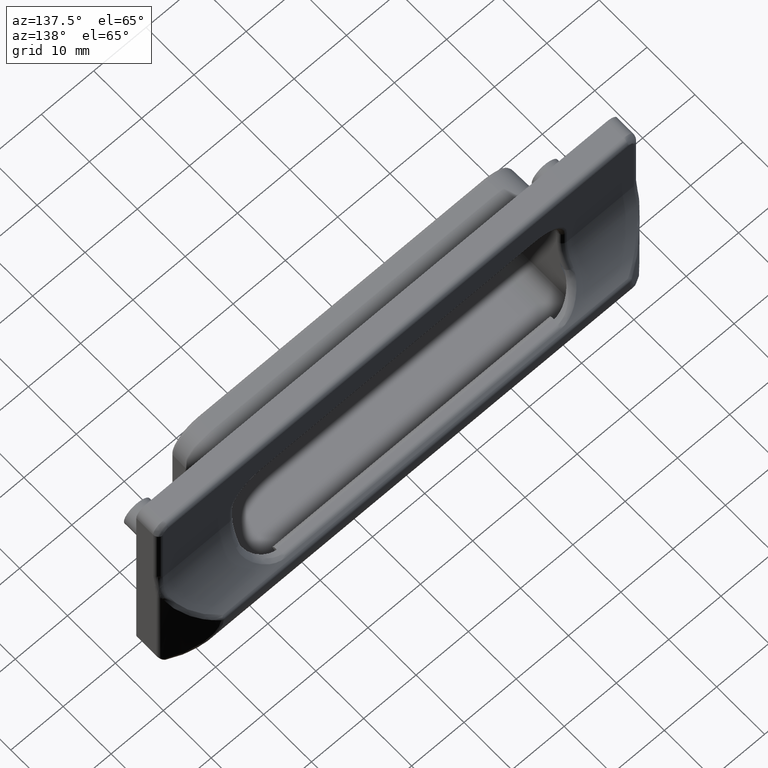
[diagram: clean part render]
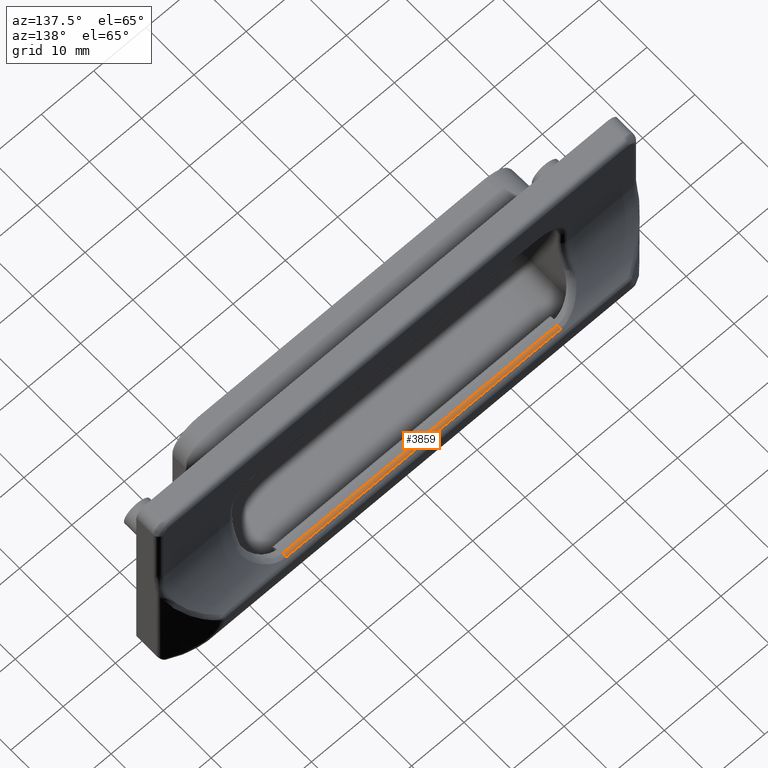
[diagram: same view with one face highlighted and labeled with its STEP entity id]
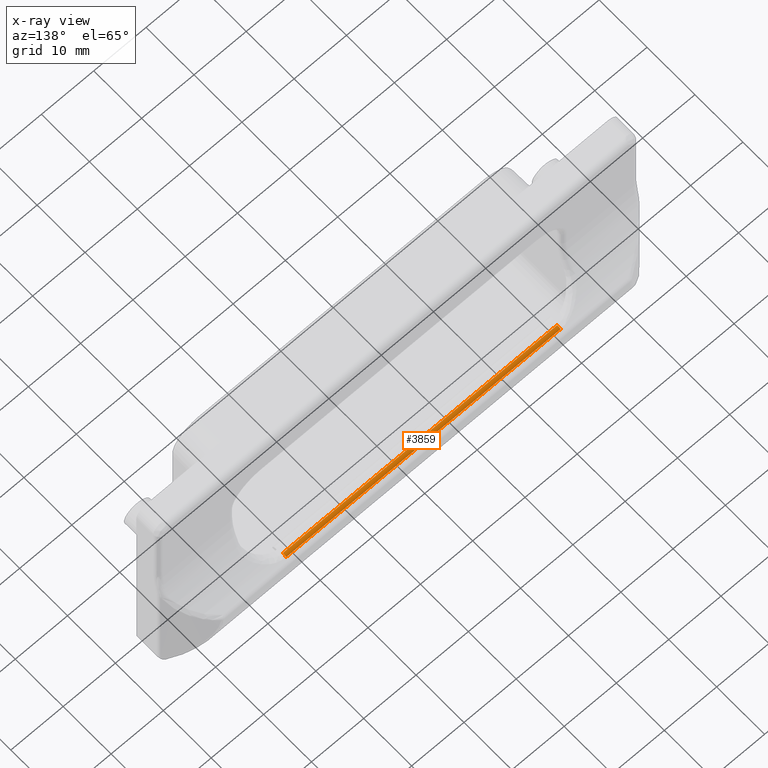
[diagram: x-ray of the same camera — body ghosted, the highlighted face saturated]
A machine part, auxiliary view. The second image highlights one B-rep face of the part: STEP entity #3859.
The next image is the same camera in x-ray: the body ghosted, the highlighted face saturated — about 0% of this face is hidden behind the body in this view.
In plain terms, the highlighted cylindrical surface (edge-blend (fillet) strip) has radius 1 mm, axis along (1, 0, 0).
Its self-contained STEP definition (entity closure, byte-faithful):
#106=LINE('',#7148,#387);
#133=LINE('',#7340,#414);
#387=VECTOR('',#4680,52.5);
#414=VECTOR('',#4787,52.5);
#732=CYLINDRICAL_SURFACE('',#4158,1.);
#877=FACE_OUTER_BOUND('',#1125,.T.);
#1125=EDGE_LOOP('',(#2905,#2906,#2907,#2908));
#1370=CIRCLE('',#4155,0.999999999999994);
#1372=CIRCLE('',#4157,1.);
#1721=VERTEX_POINT('',#7139);
#1722=VERTEX_POINT('',#7147);
#1750=VERTEX_POINT('',#7285);
#1751=VERTEX_POINT('',#7330);
#2134=EDGE_CURVE('',#1722,#1721,#106,.T.);
#2182=EDGE_CURVE('',#1750,#1722,#1370,.T.);
#2186=EDGE_CURVE('',#1751,#1721,#1372,.T.);
#2187=EDGE_CURVE('',#1751,#1750,#133,.T.);
#2905=ORIENTED_EDGE('',*,*,#2182,.T.);
#2906=ORIENTED_EDGE('',*,*,#2134,.T.);
#2907=ORIENTED_EDGE('',*,*,#2186,.F.);
#2908=ORIENTED_EDGE('',*,*,#2187,.T.);
#3859=ADVANCED_FACE('',(#877),#732,.T.);
#4155=AXIS2_PLACEMENT_3D('',#7286,#4779,#4780);
#4157=AXIS2_PLACEMENT_3D('',#7338,#4783,#4784);
#4158=AXIS2_PLACEMENT_3D('',#7339,#4785,#4786);
#4680=DIRECTION('',(-1.,0.,0.));
#4779=DIRECTION('center_axis',(-1.,0.,0.));
#4780=DIRECTION('ref_axis',(0.,0.,1.));
#4783=DIRECTION('center_axis',(-1.,9.18555668831902E-15,-8.88178419700124E-15));
#4784=DIRECTION('ref_axis',(-8.88178419700124E-15,0.,1.));
#4785=DIRECTION('center_axis',(1.,0.,0.));
#4786=DIRECTION('ref_axis',(0.,0.374903981562887,0.927063646471101));
#4787=DIRECTION('',(1.,0.,-1.26882631385732E-16));
#7139=CARTESIAN_POINT('',(-26.25,9.70837171567235,-6.78110599078341));
#7147=CARTESIAN_POINT('',(26.25,9.70837171567235,-6.78110599078341));
#7148=CARTESIAN_POINT('',(0.,9.70837171567235,-6.78110599078341));
#7285=CARTESIAN_POINT('',(26.25,9.01325201122391,-6.50000000000001));
#7286=CARTESIAN_POINT('Origin',(26.25,9.01325201122391,-7.50000000000001));
#7330=CARTESIAN_POINT('',(-26.25,9.0132520112239,-6.5));
#7338=CARTESIAN_POINT('Origin',(-26.25,9.0132520112239,-7.5));
#7339=CARTESIAN_POINT('Origin',(0.,9.01325201122391,-7.50000000000001));
#7340=CARTESIAN_POINT('',(1.26882631385732E-16,9.01325201122391,-6.50000000000001));